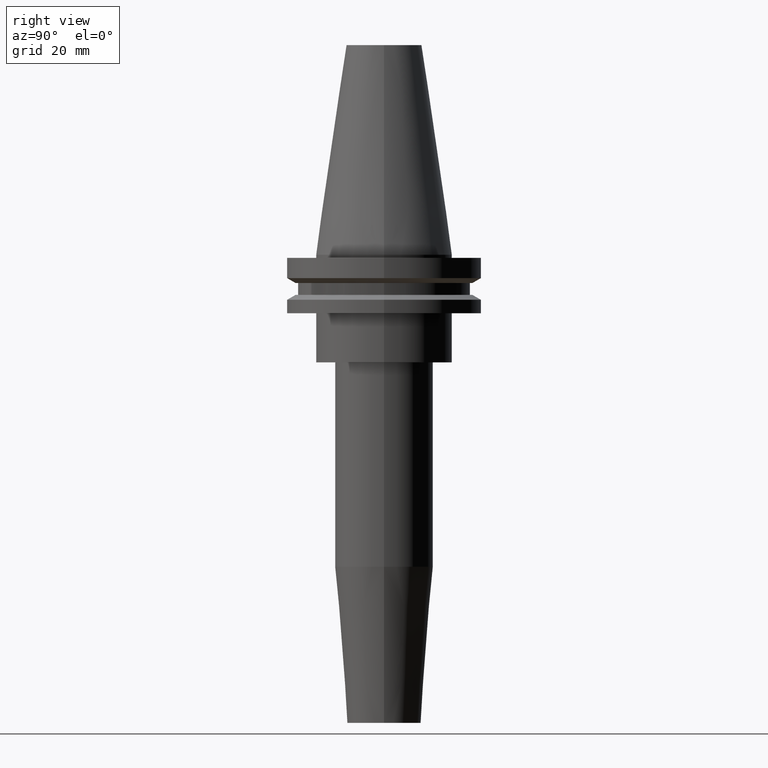
[diagram: clean part render]
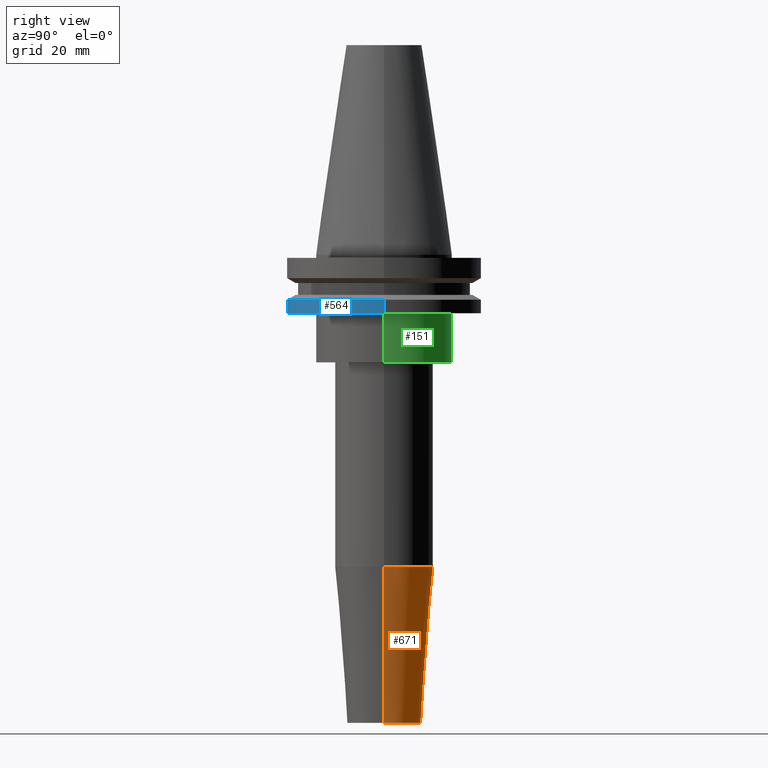
[diagram: same view with three faces highlighted in distinct colors, each labeled with its STEP entity id]
A machine part, right view with three faces highlighted in distinct colors.
Their STEP definitions:

[orange] entity #671 — the highlighted conical surface has half-angle 4.5 deg.
#6 = ORIENTED_EDGE ( 'NONE', *, *, #617, .F. ) ;
#20 = DIRECTION ( 'NONE',  ( -0.000000000000000000, -0.000000000000000000, 1.000000000000000000 ) ) ;
#48 = ORIENTED_EDGE ( 'NONE', *, *, #648, .F. ) ;
#72 = EDGE_CURVE ( 'NONE', #149, #145, #261, .T. ) ;
#84 = CARTESIAN_POINT ( 'NONE',  ( -12.00000000000000000, 1.469576158976823947E-15, -152.4000000000000057 ) ) ;
#116 = LINE ( 'NONE', #313, #468 ) ;
#130 = DIRECTION ( 'NONE',  ( 1.000000000000000000, 0.000000000000000000, 0.000000000000000000 ) ) ;
#137 = LINE ( 'NONE', #84, #806 ) ;
#141 = DIRECTION ( 'NONE',  ( -0.07845909572783678343, 9.608468044709108930E-18, 0.9969173337331286300 ) ) ;
#145 = VERTEX_POINT ( 'NONE', #258 ) ;
#149 = VERTEX_POINT ( 'NONE', #320 ) ;
#198 = EDGE_LOOP ( 'NONE', ( #552, #767, #48, #6 ) ) ;
#230 = AXIS2_PLACEMENT_3D ( 'NONE', #550, #20, #611 ) ;
#249 = DIRECTION ( 'NONE',  ( -0.000000000000000000, -0.000000000000000000, 1.000000000000000000 ) ) ;
#256 = EDGE_CURVE ( 'NONE', #145, #453, #137, .T. ) ;
#258 = CARTESIAN_POINT ( 'NONE',  ( -12.00000000000000000, 1.714505518806294638E-15, -152.4000000000000057 ) ) ;
#261 = CIRCLE ( 'NONE', #360, 12.00000000000000000 ) ;
#266 = DIRECTION ( 'NONE',  ( 1.000000000000000000, 0.000000000000000000, 0.000000000000000000 ) ) ;
#272 = DIRECTION ( 'NONE',  ( -0.000000000000000000, -0.000000000000000000, 1.000000000000000000 ) ) ;
#313 = CARTESIAN_POINT ( 'NONE',  ( 12.00000000000000000, 0.000000000000000000, -152.4000000000000057 ) ) ;
#320 = CARTESIAN_POINT ( 'NONE',  ( 12.00000000000000000, 0.000000000000000000, -152.4000000000000057 ) ) ;
#344 = FACE_OUTER_BOUND ( 'NONE', #198, .T. ) ;
#360 = AXIS2_PLACEMENT_3D ( 'NONE', #842, #249, #266 ) ;
#453 = VERTEX_POINT ( 'NONE', #698 ) ;
#468 = VECTOR ( 'NONE', #577, 1000.000000000000000 ) ;
#517 = AXIS2_PLACEMENT_3D ( 'NONE', #665, #272, #130 ) ;
#550 = CARTESIAN_POINT ( 'NONE',  ( 0.000000000000000000, 0.000000000000000000, -152.4000000000000057 ) ) ;
#552 = ORIENTED_EDGE ( 'NONE', *, *, #72, .T. ) ;
#577 = DIRECTION ( 'NONE',  ( 0.07845909572783678343, 0.000000000000000000, 0.9969173337331286300 ) ) ;
#608 = CARTESIAN_POINT ( 'NONE',  ( 16.00000000000000000, 0.000000000000000000, -101.5751810552958716 ) ) ;
#611 = DIRECTION ( 'NONE',  ( 1.000000000000000000, 0.000000000000000000, 0.000000000000000000 ) ) ;
#617 = EDGE_CURVE ( 'NONE', #149, #667, #116, .T. ) ;
#648 = EDGE_CURVE ( 'NONE', #667, #453, #764, .T. ) ;
#665 = CARTESIAN_POINT ( 'NONE',  ( 0.000000000000000000, 0.000000000000000000, -101.5751810552958716 ) ) ;
#667 = VERTEX_POINT ( 'NONE', #608 ) ;
#671 = ADVANCED_FACE ( 'NONE', ( #344 ), #834, .T. ) ;
#698 = CARTESIAN_POINT ( 'NONE',  ( -16.00000000000000000, 1.959434878635765131E-15, -101.5751810552958716 ) ) ;
#764 = CIRCLE ( 'NONE', #517, 16.00000000000000000 ) ;
#767 = ORIENTED_EDGE ( 'NONE', *, *, #256, .T. ) ;
#806 = VECTOR ( 'NONE', #141, 1000.000000000000000 ) ;
#834 = CONICAL_SURFACE ( 'NONE', #230, 12.00000000000000000, 0.07853981633973664001 ) ;
#842 = CARTESIAN_POINT ( 'NONE',  ( 0.000000000000000000, 0.000000000000000000, -152.4000000000000057 ) ) ;

[blue] entity #564 — the highlighted cylindrical surface (partial cylindrical patch) has radius 31.75 mm, axis along (-0, -0, 1).
#13 = CARTESIAN_POINT ( 'NONE',  ( 31.75000000000000000, 0.000000000000000000, -14.65472339340266572 ) ) ;
#32 = AXIS2_PLACEMENT_3D ( 'NONE', #670, #408, #276 ) ;
#65 = CARTESIAN_POINT ( 'NONE',  ( 0.000000000000000000, 0.000000000000000000, 68.25000000000000000 ) ) ;
#79 = VERTEX_POINT ( 'NONE', #594 ) ;
#106 = CARTESIAN_POINT ( 'NONE',  ( -31.75000000000000000, 3.888253587292846476E-15, 68.25000000000000000 ) ) ;
#126 = FACE_OUTER_BOUND ( 'NONE', #595, .T. ) ;
#204 = CARTESIAN_POINT ( 'NONE',  ( 31.75000000000000000, 0.000000000000000000, 68.25000000000000000 ) ) ;
#228 = VERTEX_POINT ( 'NONE', #13 ) ;
#264 = DIRECTION ( 'NONE',  ( 1.000000000000000000, 0.000000000000000000, 0.000000000000000000 ) ) ;
#270 = ORIENTED_EDGE ( 'NONE', *, *, #492, .F. ) ;
#276 = DIRECTION ( 'NONE',  ( 1.000000000000000000, 0.000000000000000000, 0.000000000000000000 ) ) ;
#340 = DIRECTION ( 'NONE',  ( -0.000000000000000000, -0.000000000000000000, 1.000000000000000000 ) ) ;
#402 = ORIENTED_EDGE ( 'NONE', *, *, #710, .T. ) ;
#408 = DIRECTION ( 'NONE',  ( -0.000000000000000000, -0.000000000000000000, 1.000000000000000000 ) ) ;
#411 = ORIENTED_EDGE ( 'NONE', *, *, #704, .F. ) ;
#491 = VERTEX_POINT ( 'NONE', #769 ) ;
#492 = EDGE_CURVE ( 'NONE', #491, #79, #502, .T. ) ;
#498 = ORIENTED_EDGE ( 'NONE', *, *, #712, .T. ) ;
#502 = LINE ( 'NONE', #106, #638 ) ;
#516 = CIRCLE ( 'NONE', #651, 31.74999999999999289 ) ;
#519 = CYLINDRICAL_SURFACE ( 'NONE', #548, 31.75000000000000000 ) ;
#536 = DIRECTION ( 'NONE',  ( 1.000000000000000000, 0.000000000000000000, 0.000000000000000000 ) ) ;
#545 = CARTESIAN_POINT ( 'NONE',  ( 0.000000000000000000, 0.000000000000000000, -19.04999999999999716 ) ) ;
#548 = AXIS2_PLACEMENT_3D ( 'NONE', #65, #702, #264 ) ;
#553 = LINE ( 'NONE', #204, #846 ) ;
#564 = ADVANCED_FACE ( 'NONE', ( #126 ), #519, .T. ) ;
#594 = CARTESIAN_POINT ( 'NONE',  ( -31.75000000000000000, 3.888253587292846476E-15, -14.65472339340266572 ) ) ;
#595 = EDGE_LOOP ( 'NONE', ( #270, #402, #498, #411 ) ) ;
#638 = VECTOR ( 'NONE', #831, 1000.000000000000000 ) ;
#651 = AXIS2_PLACEMENT_3D ( 'NONE', #545, #803, #536 ) ;
#669 = CIRCLE ( 'NONE', #32, 31.75000000000000000 ) ;
#670 = CARTESIAN_POINT ( 'NONE',  ( 0.000000000000000000, 0.000000000000000000, -14.65472339340266572 ) ) ;
#674 = CARTESIAN_POINT ( 'NONE',  ( 31.74999999999999289, 0.000000000000000000, -19.04999999999999716 ) ) ;
#702 = DIRECTION ( 'NONE',  ( -0.000000000000000000, -0.000000000000000000, 1.000000000000000000 ) ) ;
#704 = EDGE_CURVE ( 'NONE', #79, #228, #669, .T. ) ;
#710 = EDGE_CURVE ( 'NONE', #491, #773, #516, .T. ) ;
#712 = EDGE_CURVE ( 'NONE', #773, #228, #553, .T. ) ;
#769 = CARTESIAN_POINT ( 'NONE',  ( -31.74999999999999289, 3.888253587292845687E-15, -19.04999999999999716 ) ) ;
#773 = VERTEX_POINT ( 'NONE', #674 ) ;
#803 = DIRECTION ( 'NONE',  ( -0.000000000000000000, -0.000000000000000000, 1.000000000000000000 ) ) ;
#831 = DIRECTION ( 'NONE',  ( -0.000000000000000000, -0.000000000000000000, 1.000000000000000000 ) ) ;
#846 = VECTOR ( 'NONE', #340, 1000.000000000000000 ) ;

[green] entity #151 — the highlighted cylindrical surface (partial cylindrical patch) has radius 22.225 mm, axis along (-0, -0, 1).
#4 = DIRECTION ( 'NONE',  ( 1.000000000000000000, 0.000000000000000000, 0.000000000000000000 ) ) ;
#29 = AXIS2_PLACEMENT_3D ( 'NONE', #208, #471, #601 ) ;
#34 = LINE ( 'NONE', #819, #614 ) ;
#102 = CARTESIAN_POINT ( 'NONE',  ( -22.22500000000000142, 2.721777511104992849E-15, 68.25000000000000000 ) ) ;
#118 = DIRECTION ( 'NONE',  ( -0.000000000000000000, -0.000000000000000000, 1.000000000000000000 ) ) ;
#151 = ADVANCED_FACE ( 'NONE', ( #401 ), #534, .T. ) ;
#167 = VERTEX_POINT ( 'NONE', #423 ) ;
#193 = VERTEX_POINT ( 'NONE', #538 ) ;
#207 = AXIS2_PLACEMENT_3D ( 'NONE', #334, #118, #449 ) ;
#208 = CARTESIAN_POINT ( 'NONE',  ( 0.000000000000000000, 0.000000000000000000, -35.04999999999999716 ) ) ;
#251 = AXIS2_PLACEMENT_3D ( 'NONE', #745, #807, #4 ) ;
#307 = DIRECTION ( 'NONE',  ( -0.000000000000000000, -0.000000000000000000, 1.000000000000000000 ) ) ;
#334 = CARTESIAN_POINT ( 'NONE',  ( 0.000000000000000000, 0.000000000000000000, 68.25000000000000000 ) ) ;
#362 = CARTESIAN_POINT ( 'NONE',  ( -22.22500000000000142, 2.721777511104992849E-15, -19.04999999999999716 ) ) ;
#369 = VERTEX_POINT ( 'NONE', #362 ) ;
#370 = VECTOR ( 'NONE', #307, 1000.000000000000000 ) ;
#401 = FACE_OUTER_BOUND ( 'NONE', #607, .T. ) ;
#417 = EDGE_CURVE ( 'NONE', #167, #369, #693, .T. ) ;
#423 = CARTESIAN_POINT ( 'NONE',  ( -22.22499999999999787, 2.721777511104992454E-15, -35.04999999999999716 ) ) ;
#449 = DIRECTION ( 'NONE',  ( 1.000000000000000000, 0.000000000000000000, 0.000000000000000000 ) ) ;
#471 = DIRECTION ( 'NONE',  ( -0.000000000000000000, -0.000000000000000000, 1.000000000000000000 ) ) ;
#483 = CIRCLE ( 'NONE', #29, 22.22499999999999787 ) ;
#487 = ORIENTED_EDGE ( 'NONE', *, *, #532, .F. ) ;
#493 = CARTESIAN_POINT ( 'NONE',  ( 22.22499999999999787, 0.000000000000000000, -35.04999999999999716 ) ) ;
#497 = DIRECTION ( 'NONE',  ( -0.000000000000000000, -0.000000000000000000, 1.000000000000000000 ) ) ;
#526 = VERTEX_POINT ( 'NONE', #493 ) ;
#532 = EDGE_CURVE ( 'NONE', #526, #193, #34, .T. ) ;
#534 = CYLINDRICAL_SURFACE ( 'NONE', #207, 22.22500000000000142 ) ;
#538 = CARTESIAN_POINT ( 'NONE',  ( 22.22500000000000142, 0.000000000000000000, -19.04999999999999716 ) ) ;
#539 = ORIENTED_EDGE ( 'NONE', *, *, #737, .F. ) ;
#601 = DIRECTION ( 'NONE',  ( 1.000000000000000000, 0.000000000000000000, 0.000000000000000000 ) ) ;
#607 = EDGE_LOOP ( 'NONE', ( #796, #692, #539, #487 ) ) ;
#614 = VECTOR ( 'NONE', #497, 1000.000000000000000 ) ;
#626 = CIRCLE ( 'NONE', #251, 22.22500000000000142 ) ;
#684 = EDGE_CURVE ( 'NONE', #526, #167, #483, .T. ) ;
#692 = ORIENTED_EDGE ( 'NONE', *, *, #417, .T. ) ;
#693 = LINE ( 'NONE', #102, #370 ) ;
#737 = EDGE_CURVE ( 'NONE', #193, #369, #626, .T. ) ;
#745 = CARTESIAN_POINT ( 'NONE',  ( 0.000000000000000000, 0.000000000000000000, -19.04999999999999716 ) ) ;
#796 = ORIENTED_EDGE ( 'NONE', *, *, #684, .T. ) ;
#807 = DIRECTION ( 'NONE',  ( -0.000000000000000000, -0.000000000000000000, 1.000000000000000000 ) ) ;
#819 = CARTESIAN_POINT ( 'NONE',  ( 22.22500000000000142, 0.000000000000000000, 68.25000000000000000 ) ) ;